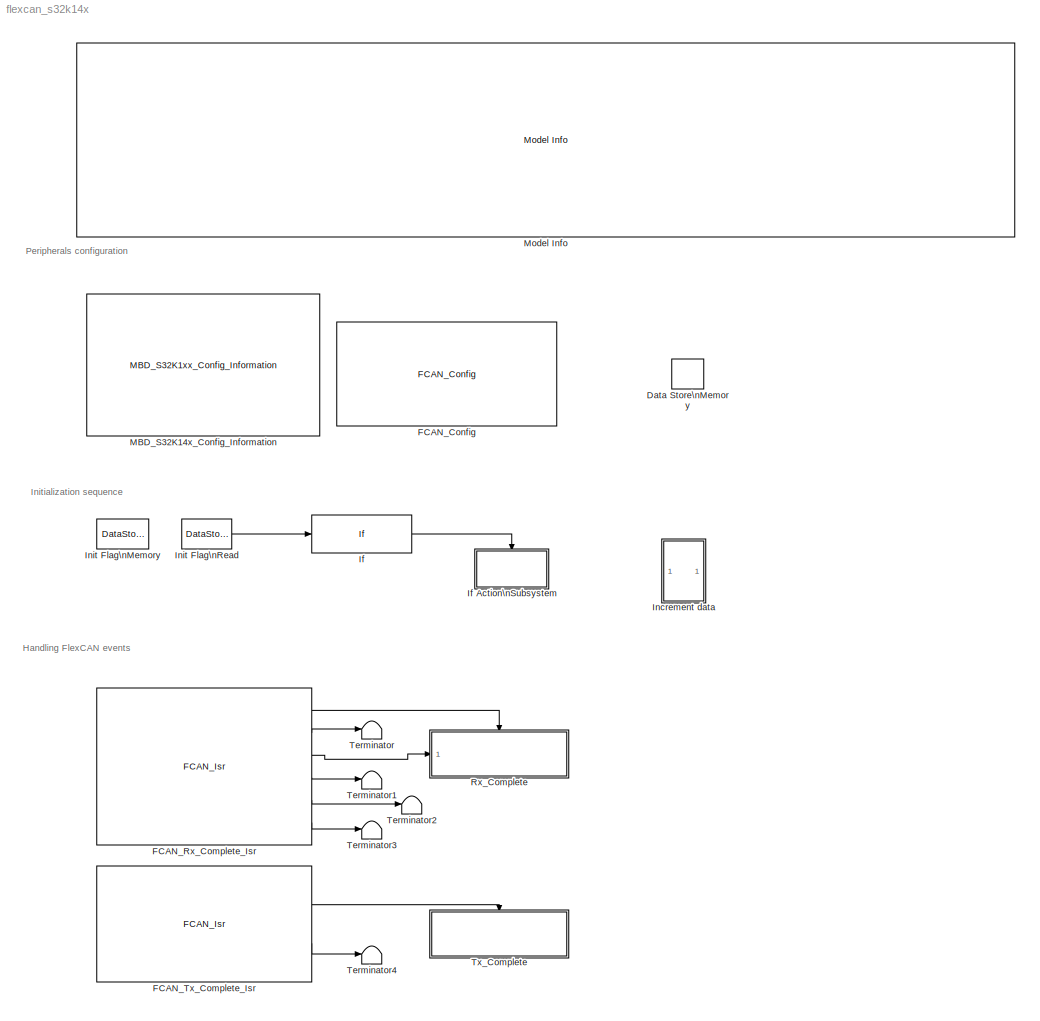
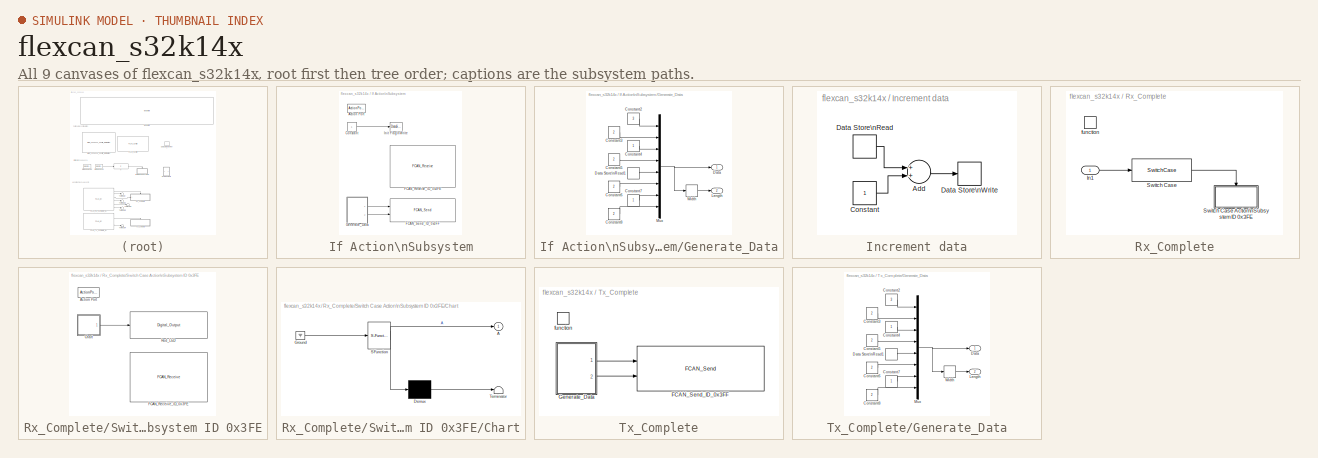
[diagram: thumbnail index - all 9 canvases of the model, root first then tree order]
MODEL flexcan_s32k14x
KIND model
CONFIG InitFcn = mbd_s32k_consistency_checks(bdroot(gcs));
BLOCK [DataStoreMemory] Data Store\nMemory
  DataStoreName = data
  OutDataTypeStr = uint8
  ReadBeforeWriteMsg = warning
  SID = 499
  ShowAdditionalParam = off
  WriteAfterReadMsg = warning
  WriteAfterWriteMsg = warning
BLOCK [Reference] FCAN_Config  REF=mbd_s32k1xx_ec_toolbox/Communication Blocks/CAN Blocks/FCAN_Config
  Ports = []
  Priority = 1
  SID = 2
  SourceBlock = mbd_s32k1xx_ec_toolbox/Communication Blocks/CAN Blocks/FCAN_Config
  SourceType = fcan_s32k_config
  bitrate = 500
  bitrate_adv_opts = off
  can_cbt_presdiv = 9
  can_cbt_propseg = 6
  can_cbt_pseg1 = 3
  can_cbt_pseg2 = 3
  can_cbt_rjw = 0
  can_clk_src = Peripheral clock
  can_fd_enable = off
  can_fifo_id_filter = {'0x0', '0x0', '0x0', '0x0', '0x0', '0x0', '0x0', '0x0'}
  can_fifo_id_filter_extended = off
  can_fifo_id_filter_remote = off
  can_fifo_id_format = A
  can_idfilter_extendedid = off
  can_idfilter_id1 = 0
  can_idfilter_id2 = 0
  can_idfilter_remoteframe = off
  can_idfilter_type = Match exact
  can_instance = 0
  can_match_timeout = 1
  can_max_num_mb = 16
  can_mode = Normal mode
  can_multiple_matches_en = off
  can_num_id_filters = 8
  can_num_matches = 1
  can_payload = 8
  can_payloadfilter_dlchigh = 0
  can_payloadfilter_dlclow = 0
  can_payloadfilter_enable = on
  can_payloadfilter_payload1_b0 = 0
  can_payloadfilter_payload1_b1 = 0
  can_payloadfilter_payload1_b2 = 0
  can_payloadfilter_payload1_b3 = 0
  can_payloadfilter_payload1_b4 = 0
  can_payloadfilter_payload1_b5 = 0
  can_payloadfilter_payload1_b6 = 0
  can_payloadfilter_payload1_b7 = 0
  can_payloadfilter_payload2_b0 = 0
  can_payloadfilter_payload2_b1 = 0
  can_payloadfilter_payload2_b2 = 0
  can_payloadfilter_payload2_b3 = 0
  can_payloadfilter_payload2_b4 = 0
  can_payloadfilter_payload2_b5 = 0
  can_payloadfilter_payload2_b6 = 0
  can_payloadfilter_payload2_b7 = 0
  can_payloadfilter_type = Match exact
  can_pn_enable = off
  can_presdiv = 7
  can_propseg = 7
  can_pseg1 = 6
  can_pseg2 = 3
  can_rjw = 3
  can_rx = PTE4: [CAN0_RX | CAN Rx channel]
  can_rxfifo_enable = off
  can_timeout_en = off
  can_tx = PTE5: [CAN0_TX | CAN Tx Channel]
  can_wakeup_match = off
  can_wakeup_timeout = off
  show_adv_opts = on
BLOCK [Reference] FCAN_Rx_Complete_Isr  REF=mbd_s32k1xx_ec_toolbox/Communication Blocks/CAN Blocks/FCAN_Isr
  Ports = [0, 6]
  SID = 86
  SourceBlock = mbd_s32k1xx_ec_toolbox/Communication Blocks/CAN Blocks/FCAN_Isr
  SourceType = fcan_s32k_isr
  can_event = Rx Complete
  can_instance = 0
BLOCK [Reference] FCAN_Tx_Complete_Isr  REF=mbd_s32k1xx_ec_toolbox/Communication Blocks/CAN Blocks/FCAN_Isr
  Ports = [0, 2]
  SID = 463
  SourceBlock = mbd_s32k1xx_ec_toolbox/Communication Blocks/CAN Blocks/FCAN_Isr
  SourceType = fcan_s32k_isr
  can_event = Tx Complete
  can_instance = 0
BLOCK [If] If
  IfExpression = u1 == 0
  Ports = [1, 1]
  SID = 144
  ShowElse = off
BLOCK [SubSystem] If Action\nSubsystem
  Ports = [0, 0, 0, 0, 0, 0, 0, 1]
  RequestExecContextInheritance = off
  SID = 145
  TreatAsAtomicUnit = on
  Variant = off
BLOCK [ActionPort] If Action\nSubsystem/Action Port
  SID = 147
BLOCK [Constant] If Action\nSubsystem/Constant
  OutDataTypeStr = uint32
  SID = 462
BLOCK [Reference] If Action\nSubsystem/FCAN_Receive_ID_0x3FE  REF=mbd_s32k1xx_ec_toolbox/Communication Blocks/CAN Blocks/FCAN_Receive
  Ports = []
  SID = 197
  SourceBlock = mbd_s32k1xx_ec_toolbox/Communication Blocks/CAN Blocks/FCAN_Receive
  SourceType = fcan_s32k_receive
  can_extended_id = off
  can_fd_enable = off
  can_id = 3FE
  can_instance = 0
  can_is_remote = off
  can_mb_idx = 14
  can_mode = Non-blocking
  can_msg_mask = FFFFFFFF
  can_timeout_ms = 0
  can_use_rxfifo = off
  show_adv_opts = off
BLOCK [Reference] If Action\nSubsystem/FCAN_Send_ID_0x3FF  REF=mbd_s32k1xx_ec_toolbox/Communication Blocks/CAN Blocks/FCAN_Send
  Ports = [2]
  Priority = 2
  SID = 212
  SourceBlock = mbd_s32k1xx_ec_toolbox/Communication Blocks/CAN Blocks/FCAN_Send
  SourceType = fcan_s32k_send
  can_enable_brs = off
  can_extended_id = off
  can_fd_enable = off
  can_fd_padding = 0
  can_id = 3FF
  can_instance = 0
  can_is_remote = off
  can_mb_idx = 15
  can_mode = Non-blocking
  can_timeout_ms = 0
  show_adv_opts = off
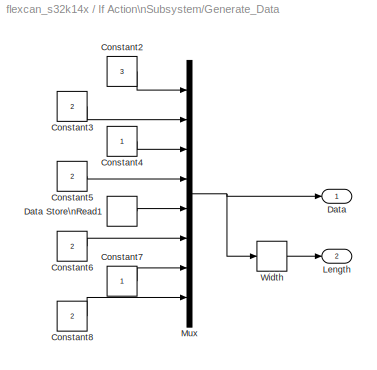
BLOCK [SubSystem] If Action\nSubsystem/Generate_Data
  Ports = [0, 2]
  RequestExecContextInheritance = off
  SID = 441
  Variant = off
BLOCK [Constant] If Action\nSubsystem/Generate_Data/Constant2
  OutDataTypeStr = uint8
  SID = 204
  Value = 3
BLOCK [Constant] If Action\nSubsystem/Generate_Data/Constant3
  OutDataTypeStr = uint8
  SID = 205
  Value = 2
BLOCK [Constant] If Action\nSubsystem/Generate_Data/Constant4
  OutDataTypeStr = uint8
  SID = 206
BLOCK [Constant] If Action\nSubsystem/Generate_Data/Constant5
  OutDataTypeStr = uint8
  SID = 207
  Value = 2
BLOCK [Constant] If Action\nSubsystem/Generate_Data/Constant6
  OutDataTypeStr = uint8
  SID = 208
  Value = 2
BLOCK [Constant] If Action\nSubsystem/Generate_Data/Constant7
  OutDataTypeStr = uint8
  SID = 209
BLOCK [Constant] If Action\nSubsystem/Generate_Data/Constant8
  OutDataTypeStr = uint8
  SID = 210
  Value = 2
BLOCK [Outport] If Action\nSubsystem/Generate_Data/Data
  IconDisplay = Port number
  SID = 442
BLOCK [DataStoreRead] If Action\nSubsystem/Generate_Data/Data Store\nRead1
  DataStoreName = data
  Ports = [0, 1]
  SID = 497
BLOCK [Outport] If Action\nSubsystem/Generate_Data/Length
  IconDisplay = Port number
  Port = 2
  SID = 481
BLOCK [Mux] If Action\nSubsystem/Generate_Data/Mux
  DisplayOption = bar
  Inputs = 8
  Ports = [8, 1]
  SID = 213
BLOCK [Width] If Action\nSubsystem/Generate_Data/Width
  DataType = uint8
  SID = 482
BLOCK [DataStoreWrite] If Action\nSubsystem/Init Flag\nWrite
  DataStoreName = init_flag
  Ports = [1]
  SID = 461
BLOCK [SubSystem] Increment data
  Ports = []
  RequestExecContextInheritance = off
  SID = 500
  Variant = off
BLOCK [Sum] Increment data/Add
  InputSameDT = off
  OutDataTypeStr = Inherit: Inherit via internal rule
  Ports = [2, 1]
  SID = 501
  SaturateOnIntegerOverflow = off
BLOCK [Constant] Increment data/Constant
  OutDataTypeStr = uint8
  SID = 502
BLOCK [DataStoreRead] Increment data/Data Store\nRead
  DataStoreName = data
  Ports = [0, 1]
  SID = 503
BLOCK [DataStoreWrite] Increment data/Data Store\nWrite
  DataStoreName = data
  Ports = [1]
  SID = 504
BLOCK [DataStoreMemory] Init Flag\nMemory
  DataStoreName = init_flag
  OutDataTypeStr = uint32
  ReadBeforeWriteMsg = warning
  SID = 138
  ShowAdditionalParam = off
  WriteAfterReadMsg = warning
  WriteAfterWriteMsg = warning
BLOCK [DataStoreRead] Init Flag\nRead
  DataStoreName = init_flag
  Ports = [0, 1]
  SID = 139
BLOCK [Reference] MBD_S32K14x_Config_Information  REF=mbd_s32k1xx_ec_toolbox/MBD_S32K1xx_Config_Information
  ADC_PcrCheckEnDis = on
  AMMCLIB_PcrCheckEnDis = on
  CMP_PcrCheckEnDis = on
  CSEc_PcrCheckEnDis = on
  ConfigParams_PcrCheckEnDis = on
  FM_PcrCheckEnDis = on
  FTM_Dual_Edge_Inputs_PcrCheckEnDis = on
  FTM_Hall_Sensor_Inputs_PcrCheckEnDis = on
  FTM_Input_Edge_Inputs_PcrCheckEnDis = on
  FTM_PWM_PcrCheckEnDis = on
  FTM_Quadrature_Inputs_PcrCheckEnDis = on
  FlexCAN_PcrCheckEnDis = on
  FlexIO_PcrCheckEnDis = on
  GPIO_InputPcrCheckEnDis = on
  GPIO_OutputPcrCheckEnDis = on
  LIN_PcrCheckEnDis = on
  LPI2C_PcrCheckEnDis = on
  LPSPI_PcrCheckEnDis = on
  LPTMR_PcrCheckEnDis = on
  LPUART_PcrCheckEnDis = on
  ModelRef_PcrCheckEnDis = on
  PDB0_PcrCheckEnDis = on
  PIT_PcrCheckEnDis = on
  Ports = []
  Profile_PcrCheckEnDis = on
  RTC_PcrCheckEnDis = on
  SBC_PcrCheckEnDis = on
  SID = 496
  SourceBlock = mbd_s32k1xx_ec_toolbox/MBD_S32K1xx_Config_Information
  SourceType = MBDTBX_EC_S32K
  WDOG_PcrCheckEnDis = on
  config_params = []
  disp_str = Target : S32K144-64KB_SRAM\nPackage : 100-pin\nSystem clock : 80 MHz\nXTAL clock : External 8 MHz\nCompiler : IAR\nTarget Type : FLASH\nDownload Code after build : off\nStep Tick Interrupt Priority : 15
  ds_import_enable = on
  eDMA_PcrCheckEnDis = on
  gcc_target_assemble_opts = -mcpu=cortex-m4 -mthumb -mfloat-abi=hard -mfpu=fpv4-sp-d16 -g
  gcc_target_compile_opts = -mcpu=cortex-m4 -mthumb -mfloat-abi=hard -mfpu=fpv4-sp-d16 -O1 -g -gstrict-dwarf
  gcc_target_default_lcf = on
  gcc_target_link_opts = -mcpu=cortex-m4 -mthumb -mfloat-abi=hard -mfpu=fpv4-sp-d16
  gcc_target_user_lcf = S32K144_64_flash.ld
  ghs_target_assemble_opts = -cpu=cortexm4f -fpu=vfpv4_d16
  ghs_target_compile_opts = -cpu=cortexm4f -thumb -DARM_MATH_CM4 -fpu=vfpv4_d16 -fsingle -Ogeneral -Wundef -Wimplicit-int -Wshadow -Wtrigraphs --no_commons --gnu_asm -gnu99 -gdwarf-2 -G
  ghs_target_default_lcf = on
  ghs_target_link_opts = -cpu=cortexm4f -thumb -fpu=vfpv4_d16
  ghs_target_user_lcf = S32K144_64_flash.ld
  iar_target_assemble_opts = --cpu Cortex-M4F --thumb --fpu VFPv4_sp
  iar_target_compile_opts = --cpu=Cortex-M4F --thumb --fpu=VFPv4_sp -Ol -e --debug --dlib_config normal
  iar_target_default_lcf = on
  iar_target_link_opts = --no_exceptions --vfe --inline
  iar_target_user_lcf = S32K144_64_flash.icf
  mbdt_ver = 0
  mcu_steptick_prio = 15
  mcu_steptick_timer = LPIT Channel 0
  mcu_system_clock_freq = 80
  mcu_target_name = S32K144
  mcu_target_package = 100-LQFP
  mcu_target_sram_size = 64KB
  mcu_xtal_freq = External 8
  pil_download_enable = off
  pil_download_rate = 57600
  pil_opensda_drive = Custom
  pil_opensda_drive_custom = D
  pil_uart_instance = 0
  pil_uart_rx = PTA2: [LPUART0_RX | Receive]
  pil_uart_tx = PTA3: [LPUART0_TX | Transmit]
  rbl_com_port = Custom
  rbl_com_port_custom = COM1
  rbl_download_enable = off
  rbl_download_interface = OpenSDA
  rbl_restart_request = off
  rbl_start_delay = 5000000
  target_compiler = GCC
  target_memory = FLASH
BLOCK [Reference] Model Info  REF=simulink/Model-Wide\nUtilities/Model Info
  DisplayStringWithTags = Model Name: %<ModelName>\n\nDescription: %<Description>
  Frame = on
  HorizontalTextAlignment = Left
  LeftAlignmentValue = 0.02
  MaskDisplayString = Model Name: flexcan_s32k14x\\n\\nDescription: This model tests the FlexCAN communication.\\nA numeric sequence with ID 0x3FF is send continuosly on FlexCAN0 to test the busload. \\nA received message with ID 0x3FE will toggle the PTD15 pin (Red LED) on each receive.\\n\\nHW prerequisite:\\n- S32K144EVB-Q100\\n- Make sure that J107 has pin 1 and 2 connected and external power supply is provieded th...<+171ch>
  Ports = []
  SID = 74
  SourceBlock = simulink/Model-Wide\nUtilities/Model Info
  SourceProductBaseCode = SL
  SourceProductName = Simulink
  SourceType = CMBlock
BLOCK [SubSystem] Rx_Complete
  Ports = [1, 0, 0, 1]
  RTWSystemCode = Nonreusable function
  RequestExecContextInheritance = off
  SID = 160
  TreatAsAtomicUnit = on
  Variant = off
BLOCK [Inport] Rx_Complete/In1
  IconDisplay = Port number
  SID = 175
BLOCK [SwitchCase] Rx_Complete/Switch Case
  CaseConditions = {hex2dec('3FE')}
  Ports = [1, 1]
  SID = 90
  ShowDefaultCase = off
BLOCK [SubSystem] Rx_Complete/Switch Case Action\nSubsystem ID 0x3FE
  Ports = [0, 0, 0, 0, 0, 0, 0, 1]
  RequestExecContextInheritance = off
  SID = 198
  TreatAsAtomicUnit = on
  Variant = off
BLOCK [ActionPort] Rx_Complete/Switch Case Action\nSubsystem ID 0x3FE/Action Port
  SID = 199
BLOCK [SubSystem] Rx_Complete/Switch Case Action\nSubsystem ID 0x3FE/Chart
  ErrorFcn = Stateflow.Translate.translate
  PermitHierarchicalResolution = ExplicitOnly
  Ports = [0, 1]
  RequestExecContextInheritance = off
  SFBlockType = Chart
  SID = 200
  TreatAsAtomicUnit = on
  Variant = off
BLOCK [Outport] Rx_Complete/Switch Case Action\nSubsystem ID 0x3FE/Chart/ A
  IconDisplay = Port number
  SID = 200::6
BLOCK [Demux] Rx_Complete/Switch Case Action\nSubsystem ID 0x3FE/Chart/ Demux 
  Outputs = 1
  Ports = [1, 1]
  SID = 200::40
BLOCK [Ground] Rx_Complete/Switch Case Action\nSubsystem ID 0x3FE/Chart/ Ground 
  SID = 200::42
BLOCK [S-Function] Rx_Complete/Switch Case Action\nSubsystem ID 0x3FE/Chart/ SFunction 
  EnableBusSupport = off
  FunctionName = sf_sfun
  PortCounts = [1 2]
  Ports = [1, 2]
  SFcnIsStateOwnerBlock = off
  SFunctionDeploymentMode = off
  SID = 200::39
  Tag = Stateflow S-Function flexcan_s32k14x 2
BLOCK [Terminator] Rx_Complete/Switch Case Action\nSubsystem ID 0x3FE/Chart/ Terminator 
  SID = 200::41
BLOCK [Reference] Rx_Complete/Switch Case Action\nSubsystem ID 0x3FE/FCAN_Receive_ID_0x3FE  REF=mbd_s32k1xx_ec_toolbox/Communication Blocks/CAN Blocks/FCAN_Receive
  Ports = []
  SID = 292
  SourceBlock = mbd_s32k1xx_ec_toolbox/Communication Blocks/CAN Blocks/FCAN_Receive
  SourceType = fcan_s32k_receive
  can_extended_id = off
  can_fd_enable = off
  can_id = 3FE
  can_instance = 0
  can_is_remote = off
  can_mb_idx = 14
  can_mode = Non-blocking
  can_msg_mask = FFFFFFFF
  can_timeout_ms = 0
  can_use_rxfifo = off
  show_adv_opts = off
BLOCK [Reference] Rx_Complete/Switch Case Action\nSubsystem ID 0x3FE/Red_LED  REF=mbd_s32k1xx_ec_toolbox/GPIO Blocks/Digital_Output
  Ports = [1]
  SID = 201
  SourceBlock = mbd_s32k1xx_ec_toolbox/GPIO Blocks/Digital_Output
  SourceType = gpio_s32k_output
  drive_strength = Low
  gpio_pin = PTD15: [PTD15 | Port D I/O]
  init_val = Low
BLOCK [TriggerPort] Rx_Complete/function
  Ports = []
  SID = 161
  StatesWhenEnabling = held
  TriggerType = function-call
  VariantControl = Variant
BLOCK [Terminator] Terminator
  SID = 475
BLOCK [Terminator] Terminator1
  SID = 474
BLOCK [Terminator] Terminator2
  SID = 473
BLOCK [Terminator] Terminator3
  SID = 480
BLOCK [Terminator] Terminator4
  SID = 476
BLOCK [SubSystem] Tx_Complete
  Ports = [0, 0, 0, 1]
  RTWSystemCode = Nonreusable function
  RequestExecContextInheritance = off
  SID = 110
  TreatAsAtomicUnit = on
  Variant = off
BLOCK [Reference] Tx_Complete/FCAN_Send_ID_0x3FF  REF=mbd_s32k1xx_ec_toolbox/Communication Blocks/CAN Blocks/FCAN_Send
  Ports = [2]
  Priority = 2
  SID = 444
  SourceBlock = mbd_s32k1xx_ec_toolbox/Communication Blocks/CAN Blocks/FCAN_Send
  SourceType = fcan_s32k_send
  can_enable_brs = off
  can_extended_id = off
  can_fd_enable = off
  can_fd_padding = 0
  can_id = 3FF
  can_instance = 0
  can_is_remote = off
  can_mb_idx = 15
  can_mode = Non-blocking
  can_timeout_ms = 0
  show_adv_opts = off
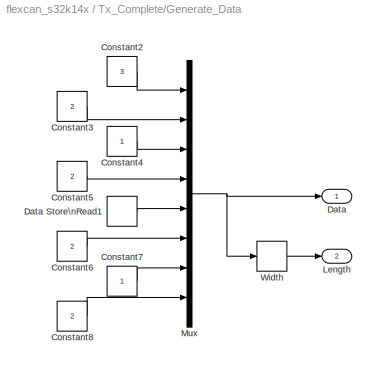
BLOCK [SubSystem] Tx_Complete/Generate_Data
  Ports = [0, 2]
  RequestExecContextInheritance = off
  SID = 483
  Variant = off
BLOCK [Constant] Tx_Complete/Generate_Data/Constant2
  OutDataTypeStr = uint8
  SID = 484
  Value = 3
BLOCK [Constant] Tx_Complete/Generate_Data/Constant3
  OutDataTypeStr = uint8
  SID = 485
  Value = 2
BLOCK [Constant] Tx_Complete/Generate_Data/Constant4
  OutDataTypeStr = uint8
  SID = 486
BLOCK [Constant] Tx_Complete/Generate_Data/Constant5
  OutDataTypeStr = uint8
  SID = 487
  Value = 2
BLOCK [Constant] Tx_Complete/Generate_Data/Constant6
  OutDataTypeStr = uint8
  SID = 488
  Value = 2
BLOCK [Constant] Tx_Complete/Generate_Data/Constant7
  OutDataTypeStr = uint8
  SID = 489
BLOCK [Constant] Tx_Complete/Generate_Data/Constant8
  OutDataTypeStr = uint8
  SID = 490
  Value = 2
BLOCK [Outport] Tx_Complete/Generate_Data/Data
  IconDisplay = Port number
  SID = 494
BLOCK [DataStoreRead] Tx_Complete/Generate_Data/Data Store\nRead1
  DataStoreName = data
  Ports = [0, 1]
  SID = 498
BLOCK [Outport] Tx_Complete/Generate_Data/Length
  IconDisplay = Port number
  Port = 2
  SID = 495
BLOCK [Mux] Tx_Complete/Generate_Data/Mux
  DisplayOption = bar
  Inputs = 8
  Ports = [8, 1]
  SID = 492
BLOCK [Width] Tx_Complete/Generate_Data/Width
  DataType = uint8
  SID = 493
BLOCK [TriggerPort] Tx_Complete/function
  Ports = []
  SID = 112
  StatesWhenEnabling = held
  TriggerType = function-call
  VariantControl = Variant
ANNOTATION (root): Handling FlexCAN events
ANNOTATION (root): Initialization sequence
ANNOTATION (root): Peripherals configuration
LINE FCAN_Rx_Complete_Isr:1 -> Rx_Complete:trigger
LINE FCAN_Rx_Complete_Isr:2 -> Terminator:1
LINE FCAN_Rx_Complete_Isr:3 -> Rx_Complete:1
LINE FCAN_Rx_Complete_Isr:4 -> Terminator1:1
LINE FCAN_Rx_Complete_Isr:5 -> Terminator2:1
LINE FCAN_Rx_Complete_Isr:6 -> Terminator3:1
LINE FCAN_Tx_Complete_Isr:1 -> Tx_Complete:trigger
LINE FCAN_Tx_Complete_Isr:2 -> Terminator4:1
LINE If Action\nSubsystem/Constant:1 -> If Action\nSubsystem/Init Flag\nWrite:1
LINE If Action\nSubsystem/Generate_Data/Constant2:1 -> If Action\nSubsystem/Generate_Data/Mux:1
LINE If Action\nSubsystem/Generate_Data/Constant3:1 -> If Action\nSubsystem/Generate_Data/Mux:2
LINE If Action\nSubsystem/Generate_Data/Constant4:1 -> If Action\nSubsystem/Generate_Data/Mux:3
LINE If Action\nSubsystem/Generate_Data/Constant5:1 -> If Action\nSubsystem/Generate_Data/Mux:4
LINE If Action\nSubsystem/Generate_Data/Constant6:1 -> If Action\nSubsystem/Generate_Data/Mux:6
LINE If Action\nSubsystem/Generate_Data/Constant7:1 -> If Action\nSubsystem/Generate_Data/Mux:7
LINE If Action\nSubsystem/Generate_Data/Constant8:1 -> If Action\nSubsystem/Generate_Data/Mux:8
LINE If Action\nSubsystem/Generate_Data/Data Store\nRead1:1 -> If Action\nSubsystem/Generate_Data/Mux:5
NET If Action\nSubsystem/Generate_Data/Mux:1 -> If Action\nSubsystem/Generate_Data/Data:1, If Action\nSubsystem/Generate_Data/Width:1
LINE If Action\nSubsystem/Generate_Data/Width:1 -> If Action\nSubsystem/Generate_Data/Length:1
LINE If Action\nSubsystem/Generate_Data:1 -> If Action\nSubsystem/FCAN_Send_ID_0x3FF:1
LINE If Action\nSubsystem/Generate_Data:2 -> If Action\nSubsystem/FCAN_Send_ID_0x3FF:2
LINE If:1 -> If Action\nSubsystem:ifaction
LINE Increment data/Add:1 -> Increment data/Data Store\nWrite:1
LINE Increment data/Constant:1 -> Increment data/Add:2
LINE Increment data/Data Store\nRead:1 -> Increment data/Add:1
LINE Init Flag\nRead:1 -> If:1
LINE Rx_Complete/In1:1 -> Rx_Complete/Switch Case:1
LINE Rx_Complete/Switch Case Action\nSubsystem ID 0x3FE/Chart/ Demux :1 -> Rx_Complete/Switch Case Action\nSubsystem ID 0x3FE/Chart/ Terminator :1
LINE Rx_Complete/Switch Case Action\nSubsystem ID 0x3FE/Chart/ Ground :1 -> Rx_Complete/Switch Case Action\nSubsystem ID 0x3FE/Chart/ SFunction :1
LINE Rx_Complete/Switch Case Action\nSubsystem ID 0x3FE/Chart/ SFunction :1 -> Rx_Complete/Switch Case Action\nSubsystem ID 0x3FE/Chart/ Demux :1
LINE Rx_Complete/Switch Case Action\nSubsystem ID 0x3FE/Chart/ SFunction :2 -> Rx_Complete/Switch Case Action\nSubsystem ID 0x3FE/Chart/ A:1
LINE Rx_Complete/Switch Case Action\nSubsystem ID 0x3FE/Chart:1 -> Rx_Complete/Switch Case Action\nSubsystem ID 0x3FE/Red_LED:1
LINE Rx_Complete/Switch Case:1 -> Rx_Complete/Switch Case Action\nSubsystem ID 0x3FE:ifaction
LINE Tx_Complete/Generate_Data/Constant2:1 -> Tx_Complete/Generate_Data/Mux:1
LINE Tx_Complete/Generate_Data/Constant3:1 -> Tx_Complete/Generate_Data/Mux:2
LINE Tx_Complete/Generate_Data/Constant4:1 -> Tx_Complete/Generate_Data/Mux:3
LINE Tx_Complete/Generate_Data/Constant5:1 -> Tx_Complete/Generate_Data/Mux:4
LINE Tx_Complete/Generate_Data/Constant6:1 -> Tx_Complete/Generate_Data/Mux:6
LINE Tx_Complete/Generate_Data/Constant7:1 -> Tx_Complete/Generate_Data/Mux:7
LINE Tx_Complete/Generate_Data/Constant8:1 -> Tx_Complete/Generate_Data/Mux:8
LINE Tx_Complete/Generate_Data/Data Store\nRead1:1 -> Tx_Complete/Generate_Data/Mux:5
NET Tx_Complete/Generate_Data/Mux:1 -> Tx_Complete/Generate_Data/Data:1, Tx_Complete/Generate_Data/Width:1
LINE Tx_Complete/Generate_Data/Width:1 -> Tx_Complete/Generate_Data/Length:1
LINE Tx_Complete/Generate_Data:1 -> Tx_Complete/FCAN_Send_ID_0x3FF:1
LINE Tx_Complete/Generate_Data:2 -> Tx_Complete/FCAN_Send_ID_0x3FF:2
note: NET lines group one-source signal fan-out (src -> all destinations, sorted); 1:1 wires keep LINE
CHART Rx_Complete/Switch Case Action\nSubsystem ID 0x3FE/Chart states=2 transitions=3
  STATE_LABEL 'A'
  STATE_LABEL 'A1'
